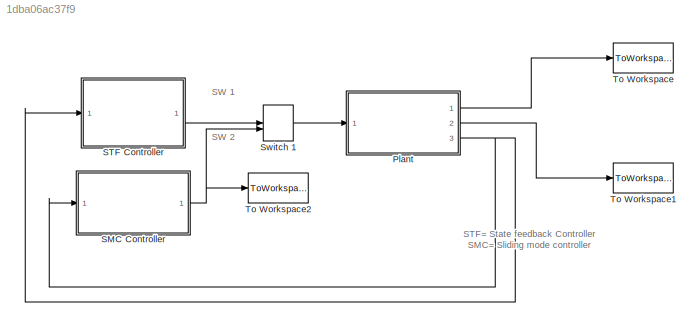
MODEL slx_1dba06ac37f9
KIND model
CONFIG AbsTol = auto
CONFIG EnableMultiTasking = off
CONFIG FixedStep = auto
CONFIG MaxStep = auto
CONFIG MinStep = auto
CONFIG RelTol = 1e-3
CONFIG SampleTimeConstraint = Unconstrained
CONFIG Solver = VariableStepAuto
CONFIG SolverName = VariableStepAuto
CONFIG StartTime = 0.0
CONFIG StopTime = stoptime
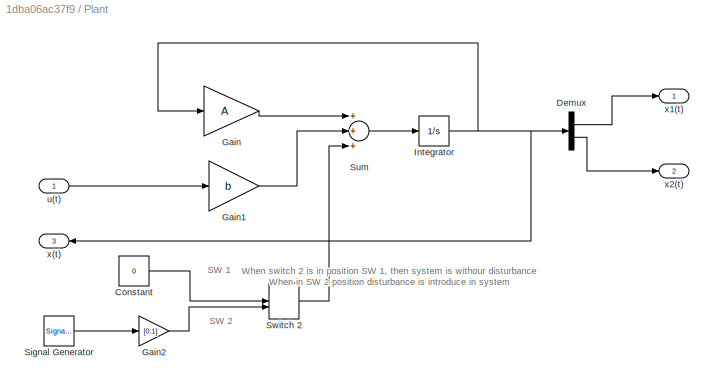
BLOCK [SubSystem] Plant
  Ports = [1, 3]
  RequestExecContextInheritance = off
  Variant = off
BLOCK [Constant] Plant/Constant
  Value = 0
BLOCK [Demux] Plant/Demux
  DisplayOption = bar
  Outputs = 2
  Ports = [1, 2]
BLOCK [Gain] Plant/Gain
  Gain = A
  Multiplication = Matrix(K*u) (u vector)
  OutDataTypeStr = Inherit: Inherit via internal rule
  ParamDataTypeStr = Inherit: Inherit via internal rule
  SaturateOnIntegerOverflow = off
BLOCK [Gain] Plant/Gain1
  Gain = b
  OutDataTypeStr = Inherit: Inherit via internal rule
  ParamDataTypeStr = Inherit: Inherit via internal rule
  SaturateOnIntegerOverflow = off
BLOCK [Gain] Plant/Gain2
  Gain = [0;1]
  Multiplication = Matrix(K*u) (u vector)
  OutDataTypeStr = Inherit: Inherit via internal rule
  ParamDataTypeStr = Inherit: Inherit via internal rule
  SaturateOnIntegerOverflow = off
BLOCK [Integrator] Plant/Integrator
  InitialCondition = x0
  Ports = [1, 1]
BLOCK [SignalGenerator] Plant/Signal Generator
  Frequency = 0.1
  Ports = [0, 1]
  Units = rad/sec
BLOCK [Sum] Plant/Sum
  InputSameDT = off
  Inputs = +++
  OutDataTypeStr = Inherit: Inherit via internal rule
  Ports = [3, 1]
  SaturateOnIntegerOverflow = off
BLOCK [ManualSwitch] Plant/Switch 2
BLOCK [Inport] Plant/u(t)
  IconDisplay = Port number
BLOCK [Outport] Plant/x(t)
  IconDisplay = Port number
  Port = 3
BLOCK [Outport] Plant/x1(t)
  IconDisplay = Port number
BLOCK [Outport] Plant/x2(t)
  IconDisplay = Port number
  Port = 2
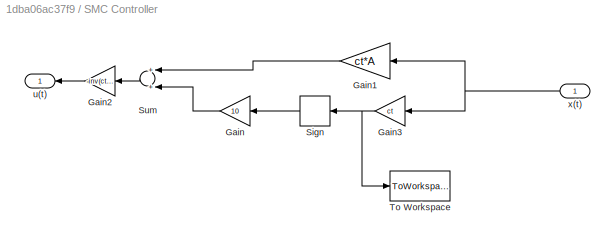
BLOCK [SubSystem] SMC Controller
  Ports = [1, 1]
  RequestExecContextInheritance = off
  Variant = off
BLOCK [Gain] SMC Controller/Gain
  Gain = 10
  OutDataTypeStr = Inherit: Inherit via internal rule
  ParamDataTypeStr = Inherit: Inherit via internal rule
  SaturateOnIntegerOverflow = off
BLOCK [Gain] SMC Controller/Gain1
  Gain = ct*A
  Multiplication = Matrix(K*u) (u vector)
  OutDataTypeStr = Inherit: Inherit via internal rule
  ParamDataTypeStr = Inherit: Inherit via internal rule
  SaturateOnIntegerOverflow = off
BLOCK [Gain] SMC Controller/Gain2
  Gain = -inv(ct*b)
  OutDataTypeStr = Inherit: Inherit via internal rule
  ParamDataTypeStr = Inherit: Inherit via internal rule
  SaturateOnIntegerOverflow = off
BLOCK [Gain] SMC Controller/Gain3
  Gain = ct
  Multiplication = Matrix(K*u) (u vector)
  OutDataTypeStr = Inherit: Inherit via internal rule
  ParamDataTypeStr = Inherit: Inherit via internal rule
  SaturateOnIntegerOverflow = off
BLOCK [Signum] SMC Controller/Sign
  ZeroCross = off
BLOCK [Sum] SMC Controller/Sum
  InputSameDT = off
  OutDataTypeStr = Inherit: Inherit via internal rule
  Ports = [2, 1]
  SaturateOnIntegerOverflow = off
BLOCK [ToWorkspace] SMC Controller/To Workspace
  FixptAsFi = on
  MaxDataPoints = inf
  Ports = [1]
  SampleTime = -1
  Save2DSignal = 3-D array (concatenate along third dimension)
  SaveFormat = Timeseries
  VariableName = sigma
BLOCK [Outport] SMC Controller/u(t)
  IconDisplay = Port number
BLOCK [Inport] SMC Controller/x(t)
  IconDisplay = Port number
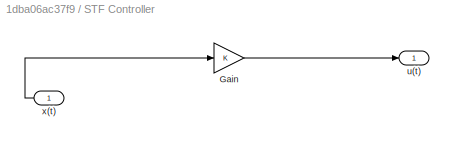
BLOCK [SubSystem] STF Controller
  Ports = [1, 1]
  RequestExecContextInheritance = off
  Variant = off
BLOCK [Gain] STF Controller/Gain
  Gain = K
  Multiplication = Matrix(K*u) (u vector)
  OutDataTypeStr = Inherit: Inherit via internal rule
  ParamDataTypeStr = Inherit: Inherit via internal rule
  SaturateOnIntegerOverflow = off
BLOCK [Outport] STF Controller/u(t)
  IconDisplay = Port number
BLOCK [Inport] STF Controller/x(t)
  IconDisplay = Port number
BLOCK [ManualSwitch] Switch 1
BLOCK [ToWorkspace] To Workspace
  FixptAsFi = on
  MaxDataPoints = inf
  Ports = [1]
  SampleTime = -1
  Save2DSignal = 3-D array (concatenate along third dimension)
  SaveFormat = Timeseries
  VariableName = x1
BLOCK [ToWorkspace] To Workspace1
  FixptAsFi = on
  MaxDataPoints = inf
  Ports = [1]
  SampleTime = -1
  Save2DSignal = 3-D array (concatenate along third dimension)
  SaveFormat = Timeseries
  VariableName = x2
BLOCK [ToWorkspace] To Workspace2
  FixptAsFi = on
  MaxDataPoints = inf
  Ports = [1]
  SampleTime = -1
  Save2DSignal = 3-D array (concatenate along third dimension)
  SaveFormat = Timeseries
  VariableName = u
ANNOTATION (root): SW 1
ANNOTATION (root): SW 2
ANNOTATION (root): STF= State feedback Controller SMC= Sliding mode controller
ANNOTATION Plant: SW 1
ANNOTATION Plant: SW 2
ANNOTATION Plant: When switch 2 is in position SW 1, then system is withour disturbance When in SW 2 position disturbance is introduce in system
LINE Plant/Constant:1 -> Plant/Switch 2:1
LINE Plant/Demux:1 -> Plant/x1(t):1
LINE Plant/Demux:2 -> Plant/x2(t):1
LINE Plant/Gain1:1 -> Plant/Sum:2
LINE Plant/Gain2:1 -> Plant/Switch 2:2
LINE Plant/Gain:1 -> Plant/Sum:1
NET Plant/Integrator:1 -> Plant/Demux:1, Plant/Gain:1, Plant/x(t):1
LINE Plant/Signal Generator:1 -> Plant/Gain2:1
LINE Plant/Sum:1 -> Plant/Integrator:1
LINE Plant/Switch 2:1 -> Plant/Sum:3
LINE Plant/u(t):1 -> Plant/Gain1:1
LINE Plant:1 -> To Workspace:1
LINE Plant:2 -> To Workspace1:1
NET Plant:3 -> SMC Controller:1, STF Controller:1
LINE SMC Controller/Gain1:1 -> SMC Controller/Sum:1
LINE SMC Controller/Gain2:1 -> SMC Controller/u(t):1
NET SMC Controller/Gain3:1 -> SMC Controller/Sign:1, SMC Controller/To Workspace:1
LINE SMC Controller/Gain:1 -> SMC Controller/Sum:2
LINE SMC Controller/Sign:1 -> SMC Controller/Gain:1
LINE SMC Controller/Sum:1 -> SMC Controller/Gain2:1
NET SMC Controller/x(t):1 -> SMC Controller/Gain1:1, SMC Controller/Gain3:1
NET SMC Controller:1 -> Switch 1:2, To Workspace2:1
LINE STF Controller/Gain:1 -> STF Controller/u(t):1
LINE STF Controller/x(t):1 -> STF Controller/Gain:1
LINE STF Controller:1 -> Switch 1:1
LINE Switch 1:1 -> Plant:1
note: NET lines group one-source signal fan-out (src -> all destinations, sorted); 1:1 wires keep LINE
